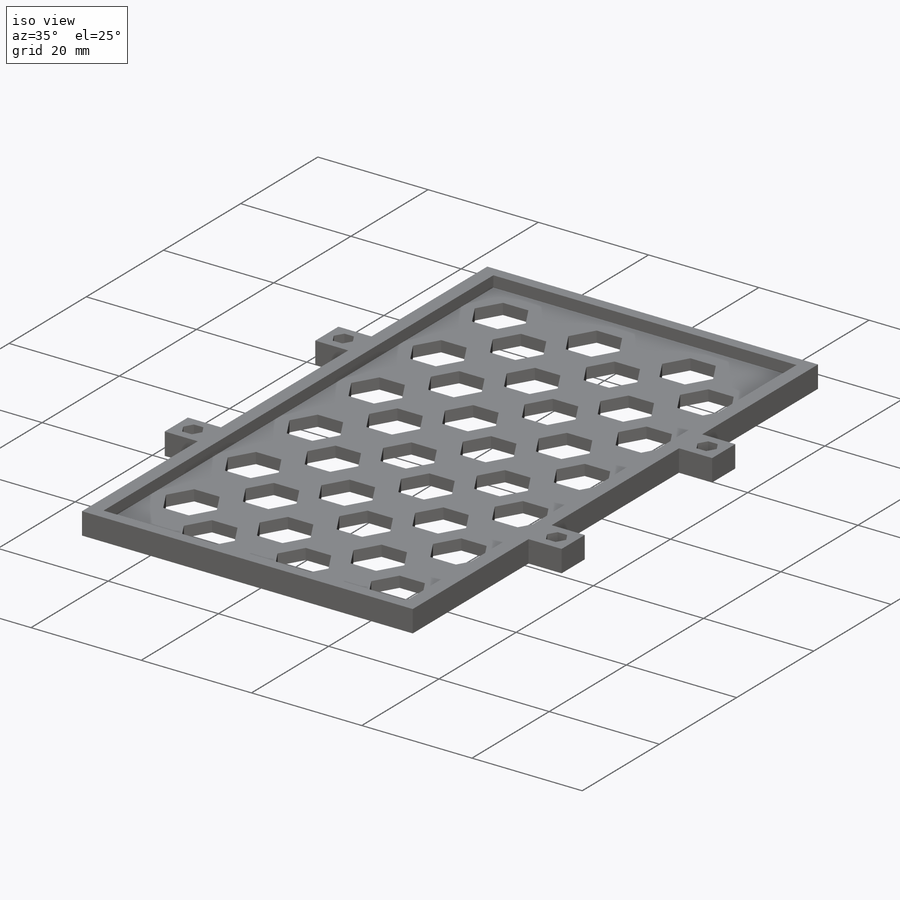
[diagram: iso view]
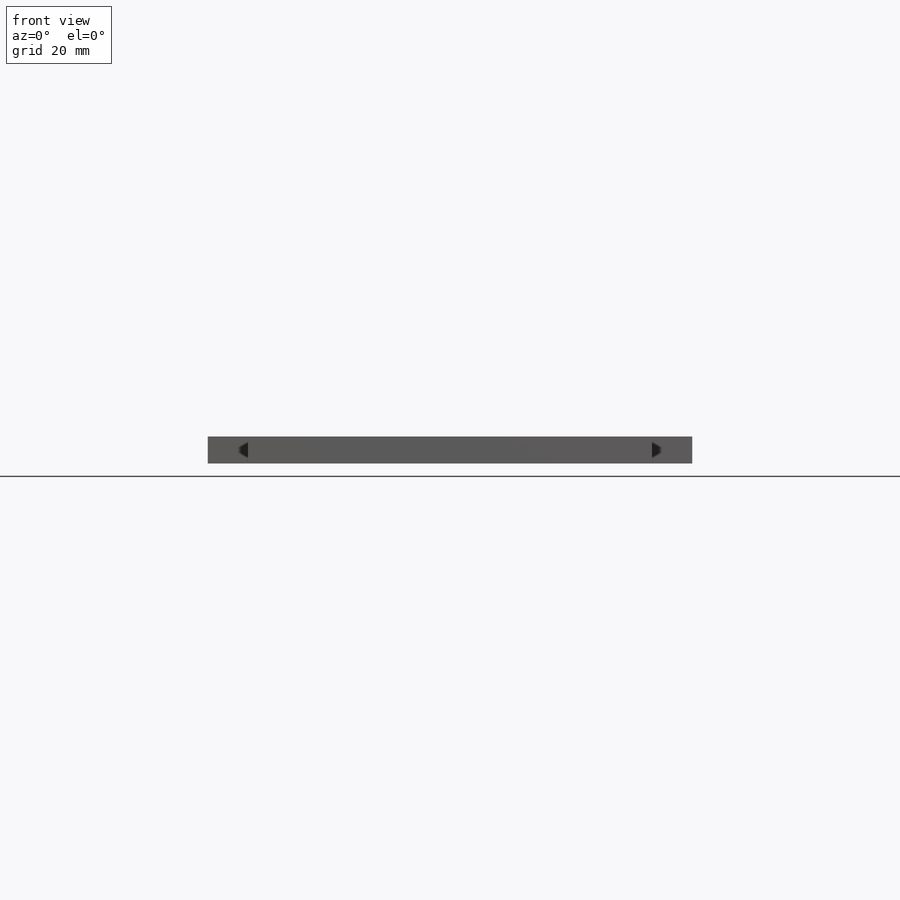
[diagram: front view]
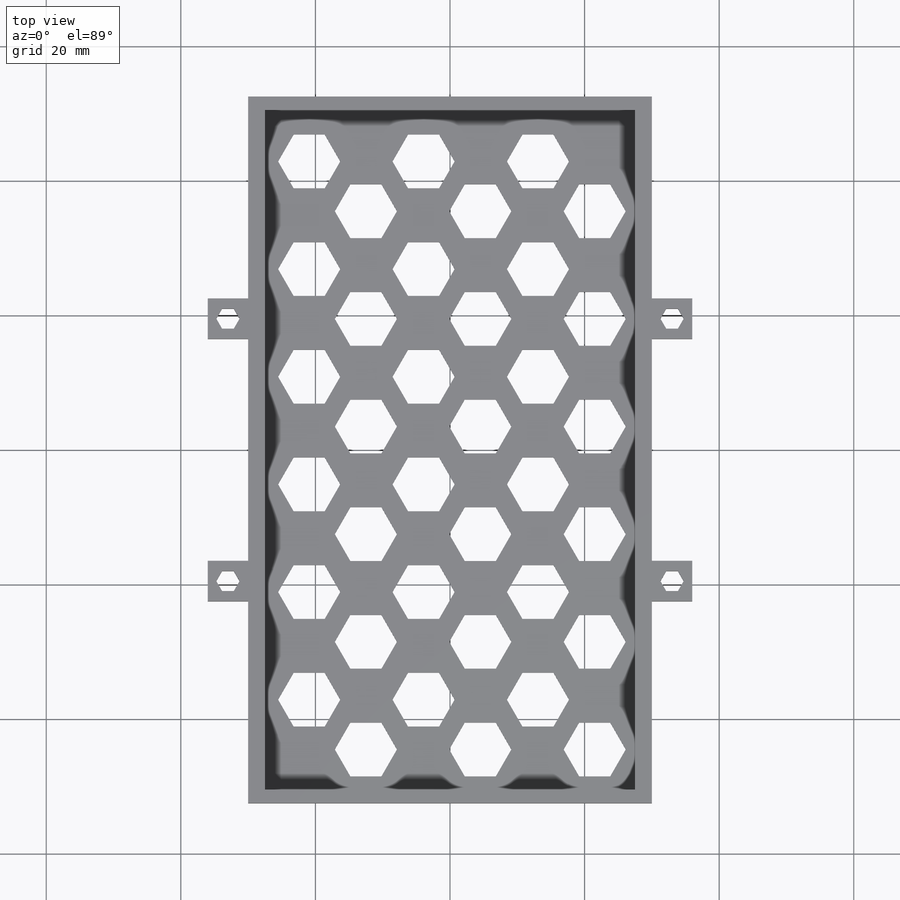
[diagram: top view]
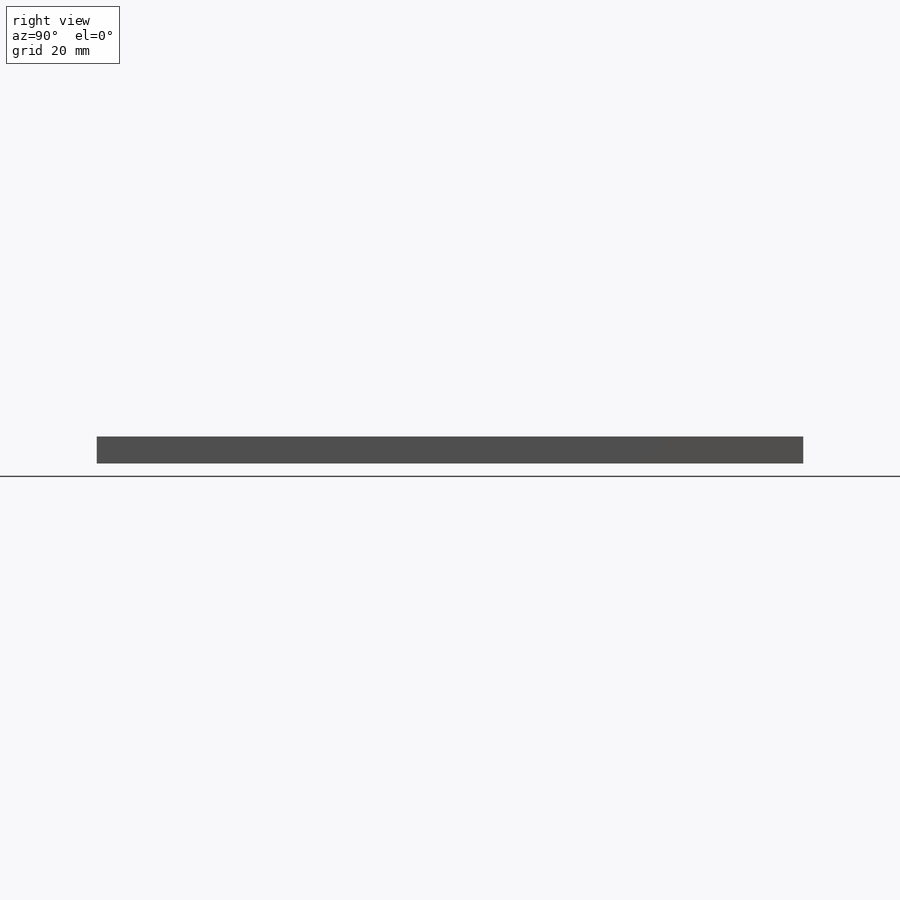
[diagram: right view]
SOLIDWORKS PART (.sldprt)
format: sldprt  version: not decoded by parser v0  size: 529,408 bytes
history: native  units: mm
features: plane x3, sketch x3, cut_extrude x2, material x1, extrude x1 (+9 scaffold rows collapsed)
feature tree (19):
  scaffold x9  (default folders/planes/origin — collapsed)
  material  "Material <sin especificar>"
  plane  "Alzado"
  plane  "Planta"
  plane  "Vista lateral"
  sketch  "Croquis1"  dims[c1.D6=3.0mm c1.D3=3.0mm c1.D1=65.0mm c1.D2=60.0mm c2.D3=11.0mm c2.D4=5.0mm c2.D5=30.0mm c2.D6=7.5mm c2.D7=4.5mm c3.D4=2.0mm c3.D3=11.0mm c4.D4=6.0mm c4.D1=45.0mm c4.D3=3.0mm]
  extrude  "Saliente-Extruir1"  Depth=4mm
  sketch  "Croquis2"  dims[c1.D1=60.0mm c1.D2=55.0mm c2.D1=2.0mm]
  cut_extrude  "Cortar-Extruir1"  Depth=2mm
  sketch  "Croquis3"  dims[c1.D1=10.0mm c1.D3=8.0mm c2.D1=~11.875744mm c2.D2=10.0mm c2.D3=10.0mm c2.D4=15.0mm c2.D5=10.0mm c3.D1=10.0mm c3.D2=6.0mm c4.D1=3.0mm c4.D4=1.5mm c4.D5=3.0 c4.D6=6.0]
  cut_extrude  "Cortar-Extruir2"  [1 undecoded]
decode coverage: 5 of 6 modeling features carry decoded parameters
note: ~ marks probable driven/reference dimensions
note: 1 parameter value undecoded
note: suppression state not decoded; provenance and decode notes live in map.json
